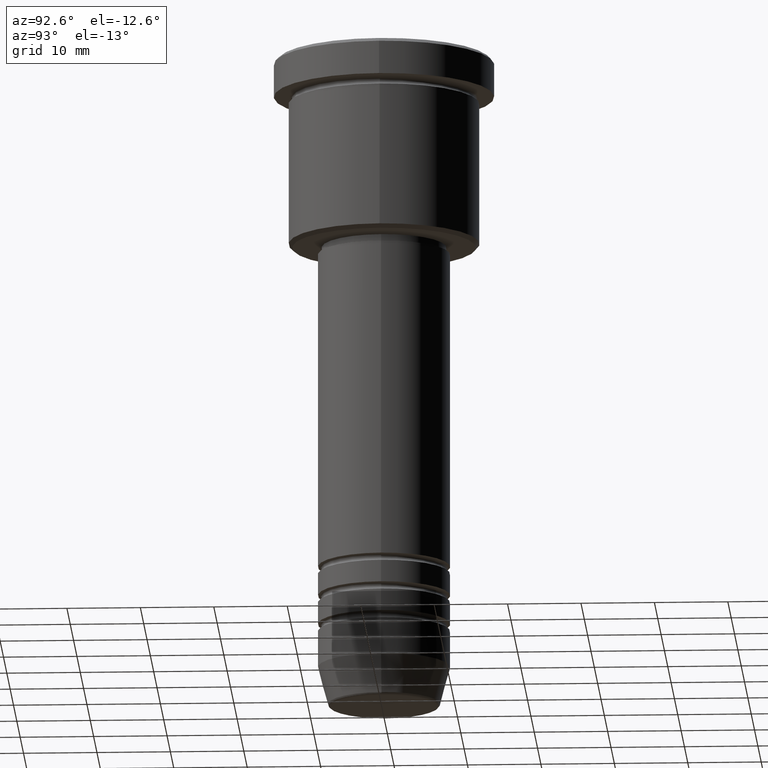
[diagram: clean part render]
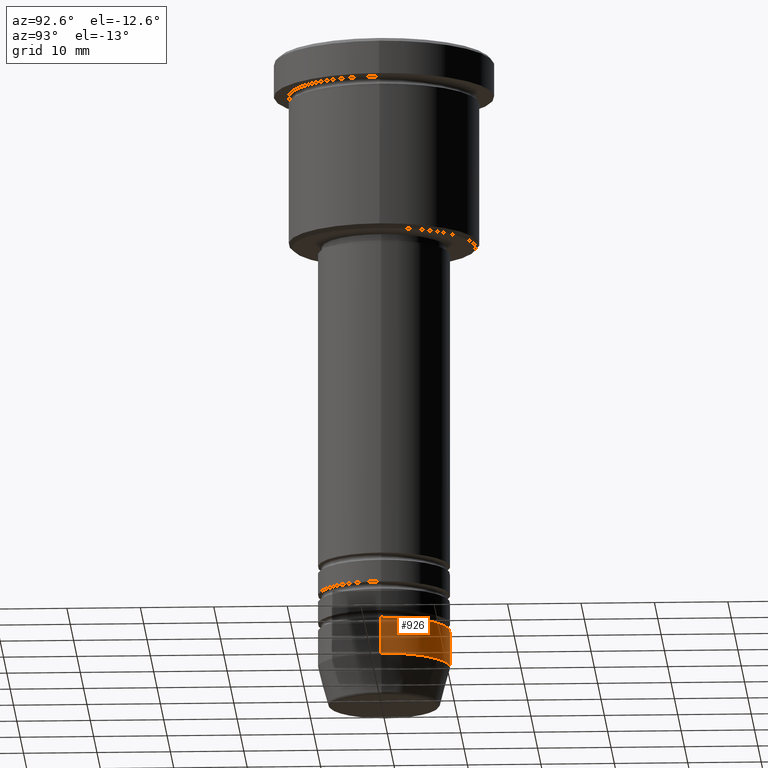
[diagram: same view with one face highlighted and labeled with its STEP entity id]
A machine part, auxiliary view. The second image highlights one B-rep face of the part: STEP entity #926.
In plain terms, the highlighted cylindrical surface (partial cylindrical patch) has radius 9 mm, axis along (-0, -0, 1).
Its self-contained STEP definition (entity closure, byte-faithful):
#4 = CYLINDRICAL_SURFACE ( 'NONE', #714, 9.000000000000001776 ) ;
#64 = CARTESIAN_POINT ( 'NONE',  ( 9.000000000000001776, 0.000000000000000000, -84.49999999999998579 ) ) ;
#74 = EDGE_CURVE ( 'NONE', #1010, #1077, #100, .T. ) ;
#100 = CIRCLE ( 'NONE', #507, 9.000000000000000000 ) ;
#119 = DIRECTION ( 'NONE',  ( 1.000000000000000000, 0.000000000000000000, 0.000000000000000000 ) ) ;
#143 = LINE ( 'NONE', #853, #886 ) ;
#156 = LINE ( 'NONE', #1157, #176 ) ;
#176 = VECTOR ( 'NONE', #687, 1000.000000000000000 ) ;
#189 = DIRECTION ( 'NONE',  ( -0.000000000000000000, -0.000000000000000000, 1.000000000000000000 ) ) ;
#246 = VERTEX_POINT ( 'NONE', #385 ) ;
#270 = AXIS2_PLACEMENT_3D ( 'NONE', #716, #189, #898 ) ;
#277 = DIRECTION ( 'NONE',  ( -0.000000000000000000, -0.000000000000000000, 1.000000000000000000 ) ) ;
#281 = CARTESIAN_POINT ( 'NONE',  ( -9.000000000000000000, 1.102182119232617714E-15, -79.49999999999998579 ) ) ;
#334 = ORIENTED_EDGE ( 'NONE', *, *, #1019, .T. ) ;
#346 = DIRECTION ( 'NONE',  ( 1.000000000000000000, 0.000000000000000000, 0.000000000000000000 ) ) ;
#347 = EDGE_CURVE ( 'NONE', #246, #1077, #143, .T. ) ;
#385 = CARTESIAN_POINT ( 'NONE',  ( -9.000000000000001776, 1.102182119232617911E-15, -84.49999999999998579 ) ) ;
#471 = DIRECTION ( 'NONE',  ( -0.000000000000000000, -0.000000000000000000, 1.000000000000000000 ) ) ;
#504 = CARTESIAN_POINT ( 'NONE',  ( 0.000000000000000000, 0.000000000000000000, -79.49999999999998579 ) ) ;
#507 = AXIS2_PLACEMENT_3D ( 'NONE', #504, #971, #119 ) ;
#628 = CARTESIAN_POINT ( 'NONE',  ( 9.000000000000000000, 0.000000000000000000, -79.49999999999998579 ) ) ;
#649 = ORIENTED_EDGE ( 'NONE', *, *, #347, .T. ) ;
#687 = DIRECTION ( 'NONE',  ( -0.000000000000000000, -0.000000000000000000, 1.000000000000000000 ) ) ;
#714 = AXIS2_PLACEMENT_3D ( 'NONE', #1098, #277, #346 ) ;
#716 = CARTESIAN_POINT ( 'NONE',  ( 0.000000000000000000, 0.000000000000000000, -84.49999999999998579 ) ) ;
#761 = ORIENTED_EDGE ( 'NONE', *, *, #878, .F. ) ;
#797 = FACE_OUTER_BOUND ( 'NONE', #1057, .T. ) ;
#816 = VERTEX_POINT ( 'NONE', #64 ) ;
#853 = CARTESIAN_POINT ( 'NONE',  ( -9.000000000000001776, 1.102182119232617911E-15, 0.000000000000000000 ) ) ;
#878 = EDGE_CURVE ( 'NONE', #816, #1010, #156, .T. ) ;
#886 = VECTOR ( 'NONE', #471, 1000.000000000000000 ) ;
#898 = DIRECTION ( 'NONE',  ( 1.000000000000000000, 0.000000000000000000, 0.000000000000000000 ) ) ;
#926 = ADVANCED_FACE ( 'NONE', ( #797 ), #4, .T. ) ;
#971 = DIRECTION ( 'NONE',  ( -0.000000000000000000, -0.000000000000000000, 1.000000000000000000 ) ) ;
#1010 = VERTEX_POINT ( 'NONE', #628 ) ;
#1019 = EDGE_CURVE ( 'NONE', #816, #246, #1174, .T. ) ;
#1057 = EDGE_LOOP ( 'NONE', ( #334, #649, #1078, #761 ) ) ;
#1077 = VERTEX_POINT ( 'NONE', #281 ) ;
#1078 = ORIENTED_EDGE ( 'NONE', *, *, #74, .F. ) ;
#1098 = CARTESIAN_POINT ( 'NONE',  ( 0.000000000000000000, 0.000000000000000000, 0.000000000000000000 ) ) ;
#1157 = CARTESIAN_POINT ( 'NONE',  ( 9.000000000000001776, 0.000000000000000000, 0.000000000000000000 ) ) ;
#1174 = CIRCLE ( 'NONE', #270, 9.000000000000001776 ) ;